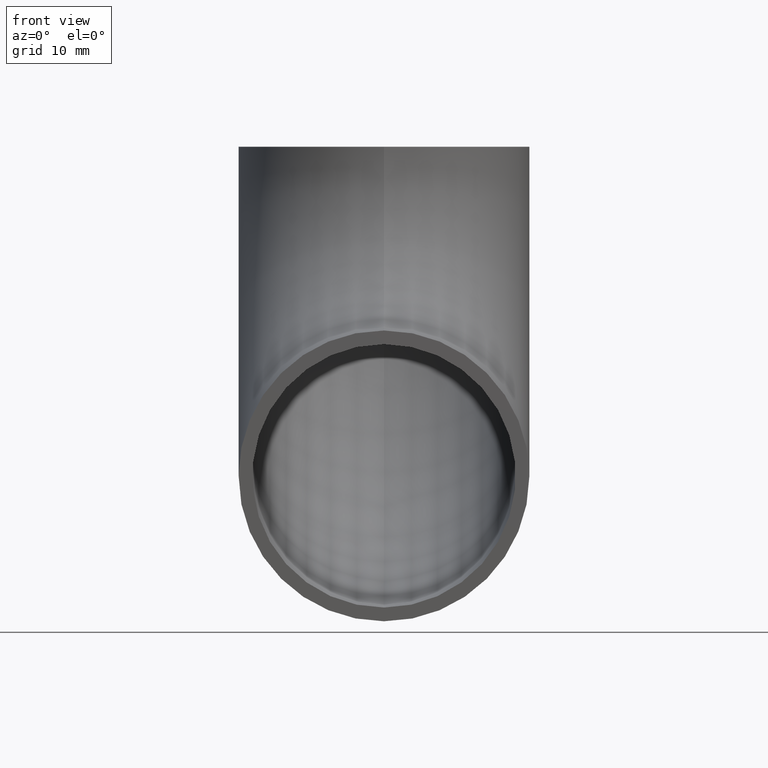
[diagram: clean part render]
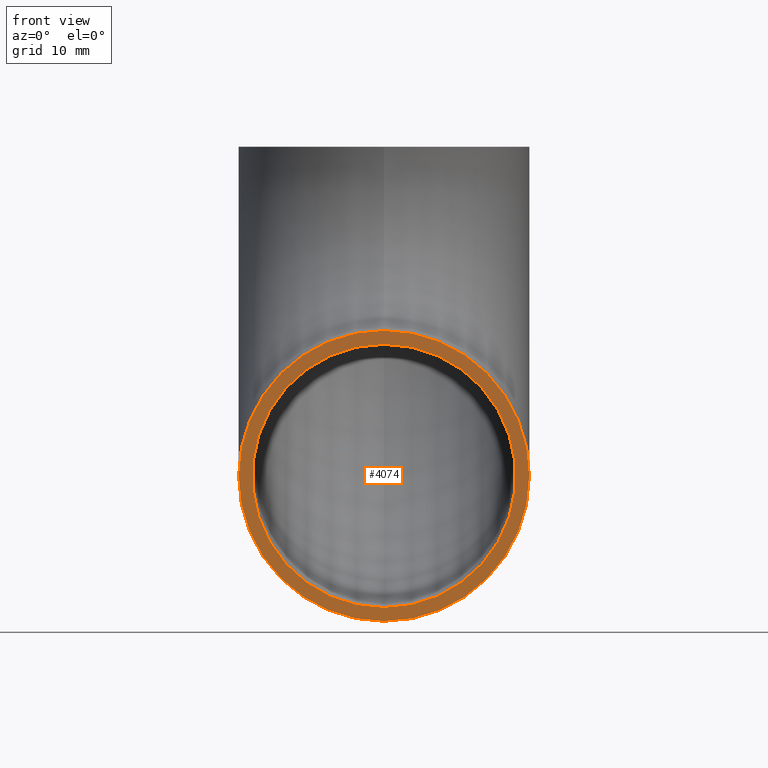
[diagram: same view with one face highlighted and labeled with its STEP entity id]
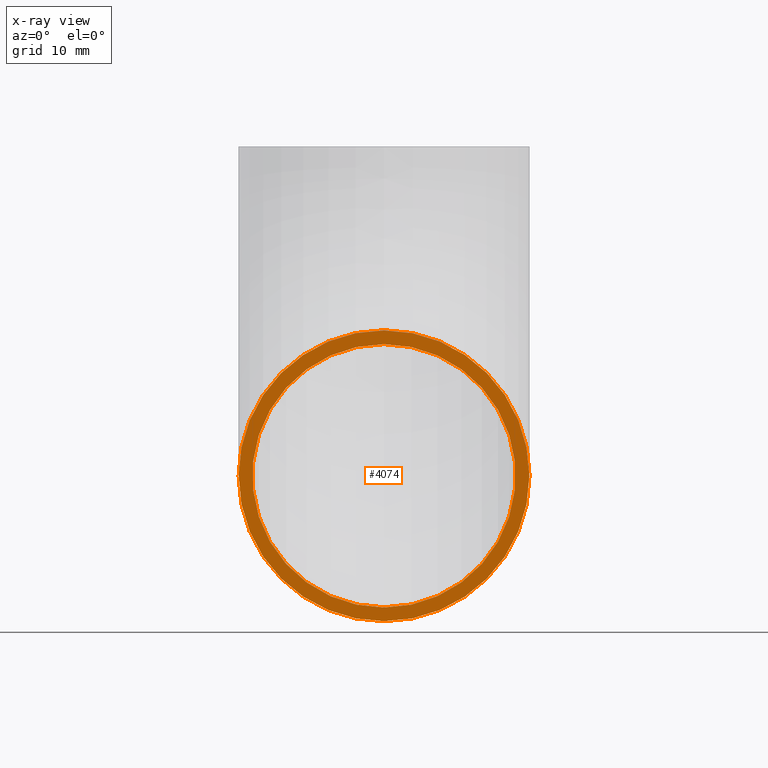
[diagram: x-ray of the same camera — body ghosted, the highlighted face saturated]
A machine part, front view. The second image highlights one B-rep face of the part: STEP entity #4074.
The next image is the same camera in x-ray: the body ghosted, the highlighted face saturated — about 0% of this face is hidden behind the body in this view.
In plain terms, the highlighted planar face has unit normal (0, 1, 0).
Its self-contained STEP definition (entity closure, byte-faithful):
#275 = FACE_BOUND ( 'NONE', #782, .T. ) ;
#383 = CIRCLE ( 'NONE', #6886, 19.20000000000000300 ) ;
#782 = EDGE_LOOP ( 'NONE', ( #1810, #6048 ) ) ;
#1678 = AXIS2_PLACEMENT_3D ( 'NONE', #4822, #4863, #4907 ) ;
#1810 = ORIENTED_EDGE ( 'NONE', *, *, #5382, .T. ) ;
#2262 = CIRCLE ( 'NONE', #5657, 21.19999999999999900 ) ;
#2313 = DIRECTION ( 'NONE',  ( 0.0000000000000000000, 0.0000000000000000000, 1.000000000000000000 ) ) ;
#2607 = EDGE_CURVE ( 'NONE', #10517, #6151, #9500, .T. ) ;
#3039 = AXIS2_PLACEMENT_3D ( 'NONE', #4480, #9379, #7387 ) ;
#3275 = EDGE_LOOP ( 'NONE', ( #10051, #7475 ) ) ;
#3605 = AXIS2_PLACEMENT_3D ( 'NONE', #7044, #4590, #8691 ) ;
#4074 = ADVANCED_FACE ( 'NONE', ( #275, #8732 ), #7729, .F. ) ;
#4345 = VERTEX_POINT ( 'NONE', #6291 ) ;
#4480 = CARTESIAN_POINT ( 'NONE',  ( 0.0000000000000000000, 0.0000000000000000000, -48.00000000000000000 ) ) ;
#4590 = DIRECTION ( 'NONE',  ( 0.0000000000000000000, 1.000000000000000000, 0.0000000000000000000 ) ) ;
#4791 = CARTESIAN_POINT ( 'NONE',  ( 0.0000000000000000000, 0.0000000000000000000, -48.00000000000000000 ) ) ;
#4822 = CARTESIAN_POINT ( 'NONE',  ( 0.0000000000000000000, 0.0000000000000000000, -48.00000000000000000 ) ) ;
#4863 = DIRECTION ( 'NONE',  ( 0.0000000000000000000, 1.000000000000000000, 0.0000000000000000000 ) ) ;
#4907 = DIRECTION ( 'NONE',  ( 0.0000000000000000000, 0.0000000000000000000, 1.000000000000000000 ) ) ;
#5382 = EDGE_CURVE ( 'NONE', #4345, #5812, #383, .T. ) ;
#5657 = AXIS2_PLACEMENT_3D ( 'NONE', #4791, #7329, #7288 ) ;
#5812 = VERTEX_POINT ( 'NONE', #8024 ) ;
#6048 = ORIENTED_EDGE ( 'NONE', *, *, #9051, .T. ) ;
#6151 = VERTEX_POINT ( 'NONE', #8358 ) ;
#6291 = CARTESIAN_POINT ( 'NONE',  ( 0.0000000000000000000, 0.0000000000000000000, -28.80000000000000100 ) ) ;
#6886 = AXIS2_PLACEMENT_3D ( 'NONE', #7235, #9791, #2313 ) ;
#7044 = CARTESIAN_POINT ( 'NONE',  ( 0.0000000000000000000, 0.0000000000000000000, -48.00000000000000000 ) ) ;
#7235 = CARTESIAN_POINT ( 'NONE',  ( 0.0000000000000000000, 0.0000000000000000000, -48.00000000000000000 ) ) ;
#7282 = CIRCLE ( 'NONE', #3605, 19.20000000000000300 ) ;
#7288 = DIRECTION ( 'NONE',  ( 0.0000000000000000000, 0.0000000000000000000, 1.000000000000000000 ) ) ;
#7329 = DIRECTION ( 'NONE',  ( 0.0000000000000000000, 1.000000000000000000, 0.0000000000000000000 ) ) ;
#7387 = DIRECTION ( 'NONE',  ( 0.0000000000000000000, -0.0000000000000000000, 1.000000000000000000 ) ) ;
#7475 = ORIENTED_EDGE ( 'NONE', *, *, #2607, .F. ) ;
#7729 = PLANE ( 'NONE',  #3039 ) ;
#8024 = CARTESIAN_POINT ( 'NONE',  ( 0.0000000000000000000, 0.0000000000000000000, -67.20000000000000300 ) ) ;
#8291 = EDGE_CURVE ( 'NONE', #6151, #10517, #2262, .T. ) ;
#8358 = CARTESIAN_POINT ( 'NONE',  ( 0.0000000000000000000, 0.0000000000000000000, -26.80000000000000100 ) ) ;
#8691 = DIRECTION ( 'NONE',  ( 0.0000000000000000000, 0.0000000000000000000, 1.000000000000000000 ) ) ;
#8732 = FACE_OUTER_BOUND ( 'NONE', #3275, .T. ) ;
#9051 = EDGE_CURVE ( 'NONE', #5812, #4345, #7282, .T. ) ;
#9130 = CARTESIAN_POINT ( 'NONE',  ( 0.0000000000000000000, 0.0000000000000000000, -69.20000000000000300 ) ) ;
#9379 = DIRECTION ( 'NONE',  ( 0.0000000000000000000, 1.000000000000000000, 0.0000000000000000000 ) ) ;
#9500 = CIRCLE ( 'NONE', #1678, 21.19999999999999900 ) ;
#9791 = DIRECTION ( 'NONE',  ( 0.0000000000000000000, 1.000000000000000000, 0.0000000000000000000 ) ) ;
#10051 = ORIENTED_EDGE ( 'NONE', *, *, #8291, .F. ) ;
#10517 = VERTEX_POINT ( 'NONE', #9130 ) ;